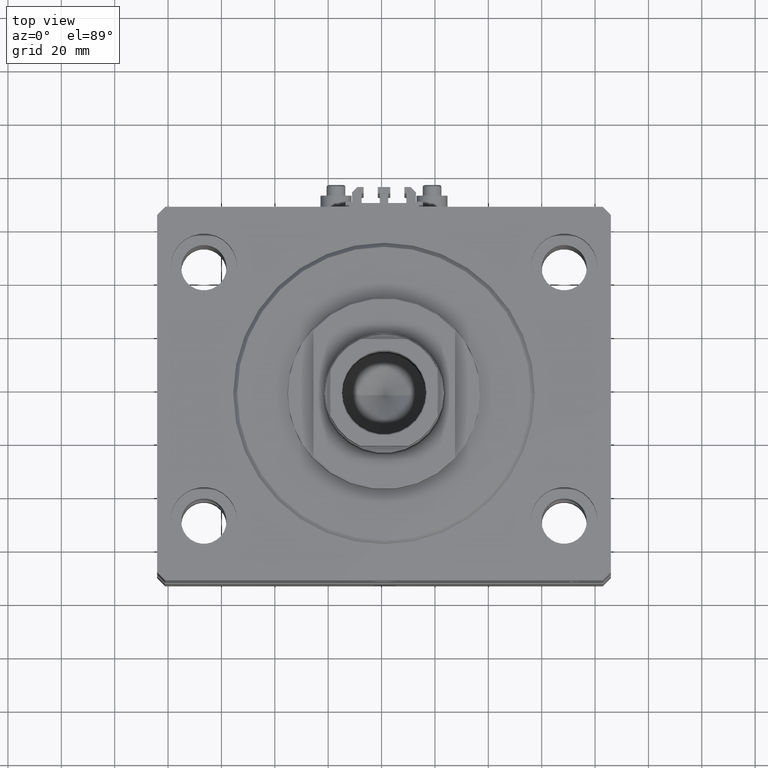
[diagram: clean part render]
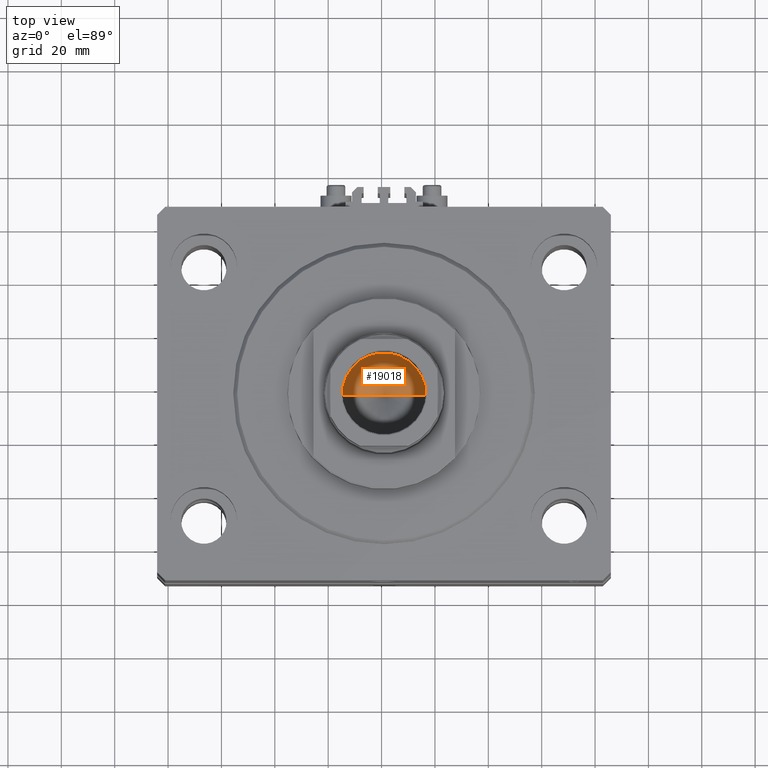
[diagram: same view with one face highlighted and labeled with its STEP entity id]
A machine part, top view. The second image highlights one B-rep face of the part: STEP entity #19018.
In plain terms, the highlighted conical surface has half-angle 59 deg.
Its self-contained STEP definition (entity closure, byte-faithful):
#2381 = CARTESIAN_POINT ( 'NONE',  ( 15.74999999999998934, 0.000000000000000000, 71.10000000000002274 ) ) ;
#6309 = DIRECTION ( 'NONE',  ( -0.000000000000000000, -0.000000000000000000, 1.000000000000000000 ) ) ;
#6961 = CIRCLE ( 'NONE', #34335, 15.74999999999998934 ) ;
#9188 = ORIENTED_EDGE ( 'NONE', *, *, #31668, .T. ) ;
#9830 = LINE ( 'NONE', #24996, #32824 ) ;
#10228 = VERTEX_POINT ( 'NONE', #2381 ) ;
#10514 = EDGE_CURVE ( 'NONE', #29201, #15788, #31971, .T. ) ;
#11931 = EDGE_LOOP ( 'NONE', ( #39578, #37713, #9188 ) ) ;
#13227 = CARTESIAN_POINT ( 'NONE',  ( -15.74999999999998934, 1.928818708657080161E-15, 71.10000000000002274 ) ) ;
#13415 = FACE_OUTER_BOUND ( 'NONE', #11931, .T. ) ;
#14744 = CARTESIAN_POINT ( 'NONE',  ( -1.480675244360640996E-14, 0.000000000000000000, 61.63644525031594412 ) ) ;
#15788 = VERTEX_POINT ( 'NONE', #13227 ) ;
#17909 = DIRECTION ( 'NONE',  ( 0.8571673007021118895, 0.000000000000000000, 0.5150380749100549327 ) ) ;
#19018 = ADVANCED_FACE ( 'NONE', ( #13415 ), #48152, .F. ) ;
#23912 = AXIS2_PLACEMENT_3D ( 'NONE', #31535, #6309, #32264 ) ;
#24996 = CARTESIAN_POINT ( 'NONE',  ( 15.74999999999998934, 0.000000000000000000, 71.10000000000002274 ) ) ;
#29201 = VERTEX_POINT ( 'NONE', #14744 ) ;
#29573 = CARTESIAN_POINT ( 'NONE',  ( 0.000000000000000000, 0.000000000000000000, 71.10000000000002274 ) ) ;
#31535 = CARTESIAN_POINT ( 'NONE',  ( 0.000000000000000000, 0.000000000000000000, 71.10000000000002274 ) ) ;
#31668 = EDGE_CURVE ( 'NONE', #10228, #15788, #6961, .T. ) ;
#31971 = LINE ( 'NONE', #46899, #40993 ) ;
#32264 = DIRECTION ( 'NONE',  ( 1.000000000000000000, 0.000000000000000000, 0.000000000000000000 ) ) ;
#32824 = VECTOR ( 'NONE', #17909, 1000.000000000000000 ) ;
#34335 = AXIS2_PLACEMENT_3D ( 'NONE', #29573, #40121, #40841 ) ;
#36667 = EDGE_CURVE ( 'NONE', #29201, #10228, #9830, .T. ) ;
#37713 = ORIENTED_EDGE ( 'NONE', *, *, #36667, .T. ) ;
#39578 = ORIENTED_EDGE ( 'NONE', *, *, #10514, .F. ) ;
#40121 = DIRECTION ( 'NONE',  ( -0.000000000000000000, -0.000000000000000000, 1.000000000000000000 ) ) ;
#40292 = DIRECTION ( 'NONE',  ( -0.8571673007021118895, 1.049727191138618079E-16, 0.5150380749100549327 ) ) ;
#40841 = DIRECTION ( 'NONE',  ( 1.000000000000000000, 0.000000000000000000, 0.000000000000000000 ) ) ;
#40993 = VECTOR ( 'NONE', #40292, 1000.000000000000000 ) ;
#46899 = CARTESIAN_POINT ( 'NONE',  ( -15.74999999999998934, 1.928818708657080161E-15, 71.10000000000002274 ) ) ;
#48152 = CONICAL_SURFACE ( 'NONE', #23912, 15.74999999999998934, 1.029744258676653645 ) ;